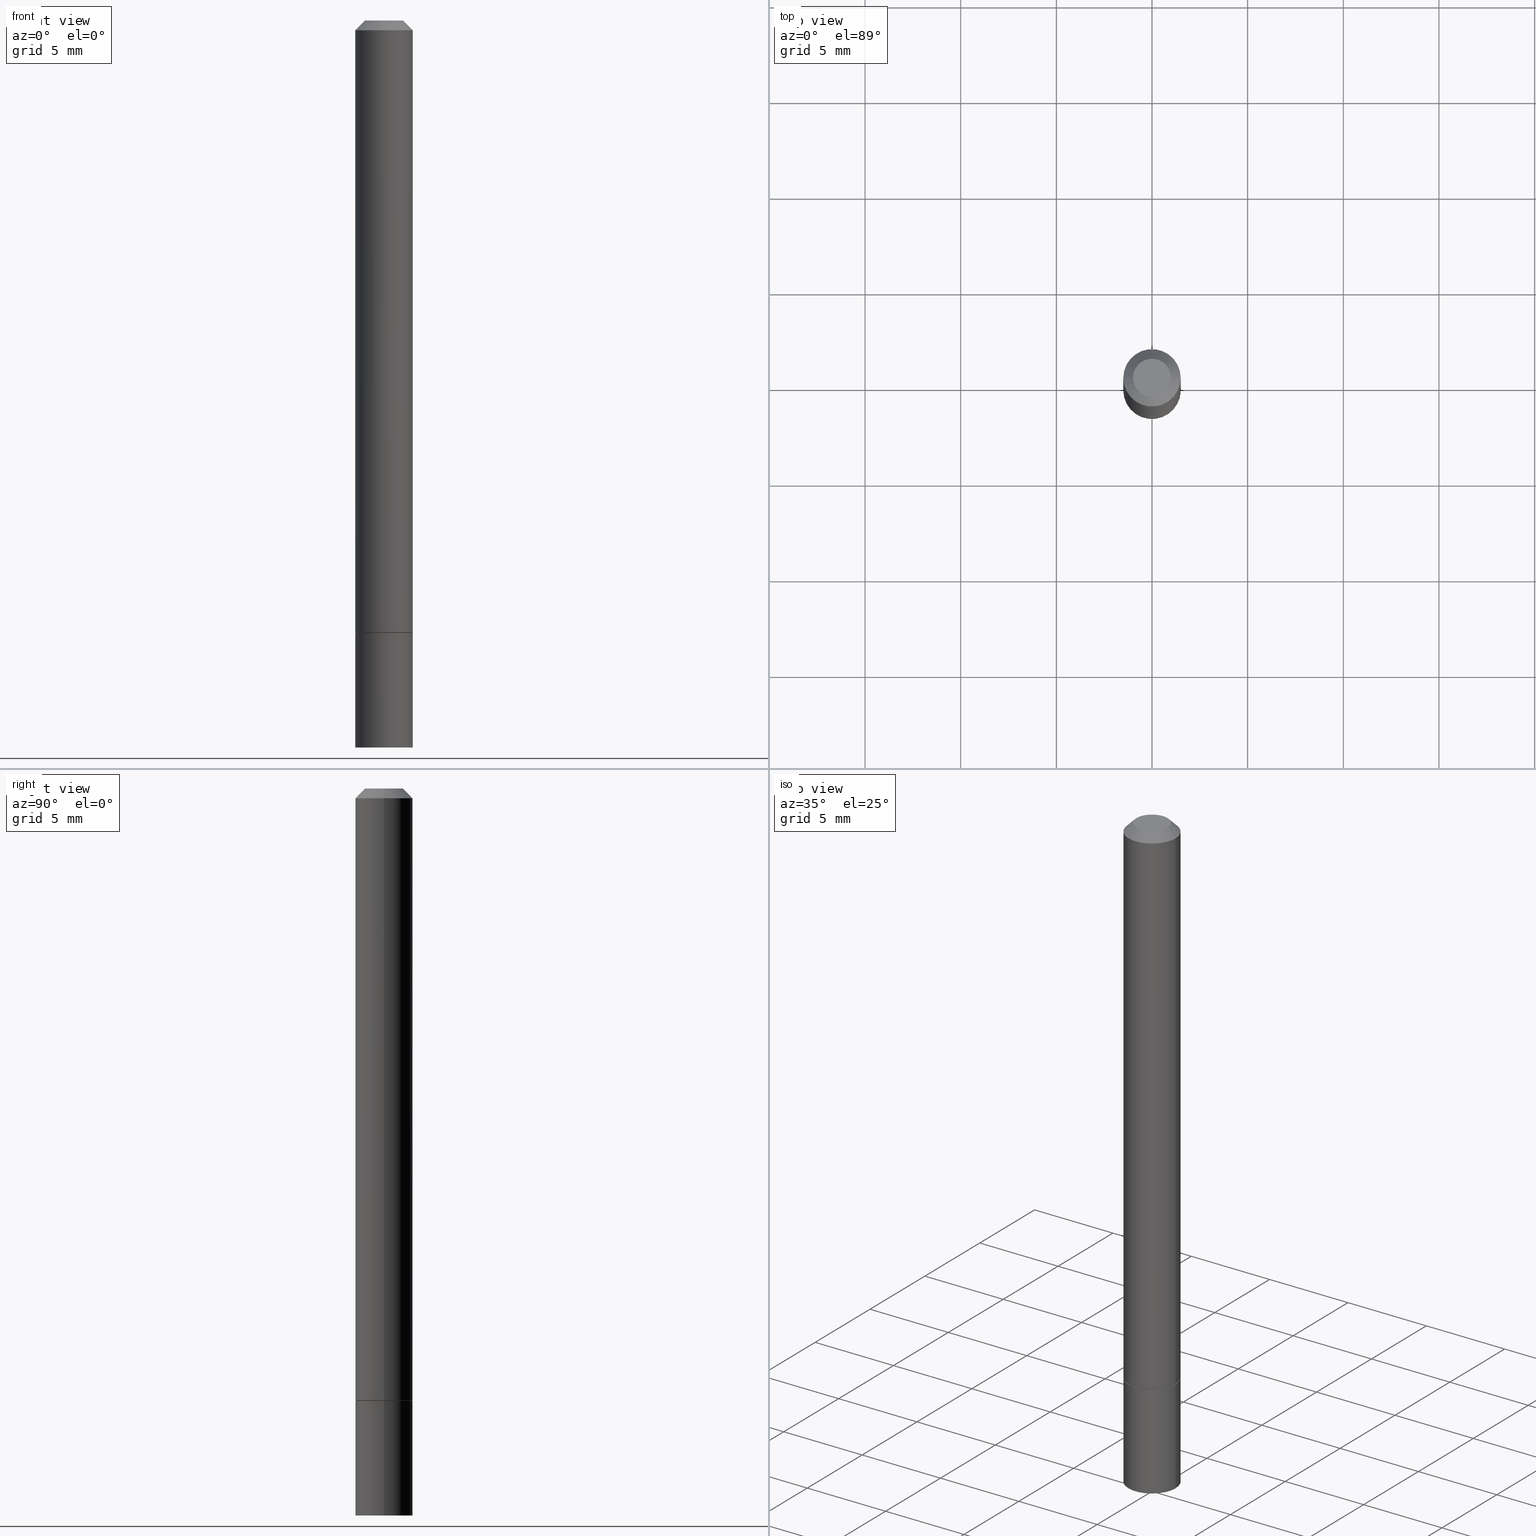
[diagram: canonical four-view strip — front | top / right | iso, engineering-drawing reading convention]
A machine part, canonical four-view strip (front | top / right | iso — engineering-drawing reading convention). The complete STEP part file that produces these views, byte-faithful:
ISO-10303-21;
HEADER;
FILE_DESCRIPTION (( 'STEP AP203' ),
    '1' );
FILE_NAME ('41621.STEP',
    '2024-02-28T02:31:24',
    ( '' ),
    ( '' ),
    'SwSTEP 2.0',
    'SolidWorks 2023',
    '' );
FILE_SCHEMA (( 'CONFIG_CONTROL_DESIGN' ));
ENDSEC;

DATA;
#1 = DIRECTION ( 'NONE',  ( -1.000000000000000000, 6.982962677686265922E-15, -4.876176775795935793E-29 ) ) ;
#2 = LINE ( 'NONE', #210, #67 ) ;
#3 = DIRECTION ( 'NONE',  ( -2.445468806185136597E-29, 3.491481338843145583E-15, 1.000000000000000000 ) ) ;
#4 = PRODUCT_DEFINITION ( 'UNKNOWN', '', #163, #264 ) ;
#5 = CYLINDRICAL_SURFACE ( 'NONE', #20, 0.05904999999999994975 ) ;
#6 = FACE_OUTER_BOUND ( 'NONE', #213, .T. ) ;
#7 = DIRECTION ( 'NONE',  ( -2.445468806185136597E-29, 3.491481338843145583E-15, 1.000000000000000000 ) ) ;
#8 = EDGE_CURVE ( 'NONE', #132, #136, #366, .T. ) ;
#9 = DIRECTION ( 'NONE',  ( 1.000000000000000000, -6.982962677686270655E-15, 0.000000000000000000 ) ) ;
#10 = PRODUCT ( '41621', '41621', '', ( #149 ) ) ;
#11 = CIRCLE ( 'NONE', #121, 0.05904999999999988036 ) ;
#12 = PERSON_AND_ORGANIZATION_ROLE ( 'creator' ) ;
#13 = CARTESIAN_POINT ( 'NONE',  ( 0.000000000000000000, 0.000000000000000000, 0.000000000000000000 ) ) ;
#14 = CC_DESIGN_DATE_AND_TIME_ASSIGNMENT ( #232, #323, ( #209 ) ) ;
#15 = PERSON_AND_ORGANIZATION_ROLE ( 'design_owner' ) ;
#16 = APPROVAL_DATE_TIME ( #356, #222 ) ;
#17 = APPROVAL_STATUS ( 'not_yet_approved' ) ;
#18 = EDGE_CURVE ( 'NONE', #307, #326, #309, .T. ) ;
#19 = ORIENTED_EDGE ( 'NONE', *, *, #64, .F. ) ;
#20 = AXIS2_PLACEMENT_3D ( 'NONE', #164, #113, #62 ) ;
#21 = CC_DESIGN_PERSON_AND_ORGANIZATION_ASSIGNMENT ( #230, #207, ( #163 ) ) ;
#22 = LINE ( 'NONE', #337, #38 ) ;
#23 = CARTESIAN_POINT ( 'NONE',  ( -0.05905000000000001914, -1.813052256656907407E-15, -1.258899999999999686 ) ) ;
#24 = ORIENTED_EDGE ( 'NONE', *, *, #35, .F. ) ;
#25 = DIRECTION ( 'NONE',  ( 2.438088387897960049E-29, -3.491481338843145188E-15, -1.000000000000000000 ) ) ;
#26 = AXIS2_PLACEMENT_3D ( 'NONE', #172, #223, #90 ) ;
#27 = DIRECTION ( 'NONE',  ( 2.438088387897960049E-29, -3.491481338843145188E-15, -1.000000000000000000 ) ) ;
#28 = VERTEX_POINT ( 'NONE', #200 ) ;
#29 = CARTESIAN_POINT ( 'NONE',  ( 3.078600680106467904E-29, -4.395425857469635235E-15, -1.258899999999999686 ) ) ;
#30 = LINE ( 'NONE', #55, #238 ) ;
#31 = DIRECTION ( 'NONE',  ( -2.445468806185136597E-29, 3.491481338843145583E-15, 1.000000000000000000 ) ) ;
#32 = DIRECTION ( 'NONE',  ( -2.445468806185136597E-29, 3.491481338843145583E-15, 1.000000000000000000 ) ) ;
#33 = CONICAL_SURFACE ( 'NONE', #339, 0.05904999999999988036, 0.7853981633974476129 ) ;
#34 = CC_DESIGN_APPROVAL ( #222, ( #4 ) ) ;
#35 = EDGE_CURVE ( 'NONE', #152, #106, #146, .T. ) ;
#36 = DIRECTION ( 'NONE',  ( -2.445468806185136877E-29, 3.491481338843145188E-15, 1.000000000000000000 ) ) ;
#37 = CALENDAR_DATE ( 2024, 27, 2 ) ;
#38 = VECTOR ( 'NONE', #109, 39.37007874015748143 ) ;
#39 = ADVANCED_FACE ( 'NONE', ( #61 ), #354, .T. ) ;
#40 = DATE_AND_TIME ( #349, #226 ) ;
#41 =( NAMED_UNIT ( * ) SI_UNIT ( $, .STERADIAN. ) SOLID_ANGLE_UNIT ( ) );
#42 = AXIS2_PLACEMENT_3D ( 'NONE', #287, #341, #255 ) ;
#43 = APPROVAL ( #17, 'UNSPECIFIED' ) ;
#44 = AXIS2_PLACEMENT_3D ( 'NONE', #313, #56, #254 ) ;
#45 = ORIENTED_EDGE ( 'NONE', *, *, #120, .T. ) ;
#46 = CARTESIAN_POINT ( 'NONE',  ( 0.05905000000000001914, -4.811261284925853162E-15, -1.259899999999999798 ) ) ;
#47 = EDGE_CURVE ( 'NONE', #365, #326, #2, .T. ) ;
#48 = CARTESIAN_POINT ( 'NONE',  ( -0.05905000000000001914, -4.391685799459515247E-15, -1.259899999999999798 ) ) ;
#49 = AXIS2_PLACEMENT_3D ( 'NONE', #216, #127, #269 ) ;
#50 = ORIENTED_EDGE ( 'NONE', *, *, #35, .T. ) ;
#51 = ORIENTED_EDGE ( 'NONE', *, *, #306, .F. ) ;
#52 = DIRECTION ( 'NONE',  ( -2.445468806185136597E-29, 3.491481338843145583E-15, 1.000000000000000000 ) ) ;
#53 = ADVANCED_FACE ( 'NONE', ( #94 ), #347, .T. ) ;
#54 = AXIS2_PLACEMENT_3D ( 'NONE', #179, #25, #328 ) ;
#55 = CARTESIAN_POINT ( 'NONE',  ( 0.05904999999999988036, -4.749420335452712790E-16, -0.02000000000000007674 ) ) ;
#56 = DIRECTION ( 'NONE',  ( -2.445468806185136597E-29, 3.491481338843145583E-15, 1.000000000000000000 ) ) ;
#57 = LINE ( 'NONE', #168, #105 ) ;
#58 = APPLICATION_CONTEXT ( 'configuration controlled 3d designs of mechanical parts and assemblies' ) ;
#59 = DIRECTION ( 'NONE',  ( 1.000000000000000000, -6.982962677686266711E-15, 0.000000000000000000 ) ) ;
#60 = AXIS2_PLACEMENT_3D ( 'NONE', #336, #7, #59 ) ;
#61 = FACE_OUTER_BOUND ( 'NONE', #268, .T. ) ;
#62 = DIRECTION ( 'NONE',  ( 1.000000000000000000, -6.982962677686266711E-15, 4.876176775795935232E-29 ) ) ;
#63 = MANIFOLD_SOLID_BREP ( 'Body-Move/Copy2[1]', #190 ) ;
#64 = EDGE_CURVE ( 'NONE', #183, #365, #124, .T. ) ;
#65 = DIRECTION ( 'NONE',  ( -2.445468806185136597E-29, 3.491481338843145583E-15, 1.000000000000000000 ) ) ;
#66 = PERSON_AND_ORGANIZATION ( #247, #171 ) ;
#67 = VECTOR ( 'NONE', #262, 39.37007874015748143 ) ;
#68 = MANIFOLD_SOLID_BREP ( 'Body-Move/Copy2[2]', #353 ) ;
#69 = PLANE ( 'NONE',  #54 ) ;
#70 = APPROVAL_DATE_TIME ( #40, #229 ) ;
#71 = EDGE_CURVE ( 'NONE', #239, #28, #178, .T. ) ;
#72 = DATE_AND_TIME ( #275, #290 ) ;
#73 = ORIENTED_EDGE ( 'NONE', *, *, #332, .F. ) ;
#74 = AXIS2_PLACEMENT_3D ( 'NONE', #117, #87, #311 ) ;
#75 = LINE ( 'NONE', #161, #265 ) ;
#76 = DIRECTION ( 'NONE',  ( -2.445468806185136877E-29, 3.491481338843145188E-15, 1.000000000000000000 ) ) ;
#77 = ORIENTED_EDGE ( 'NONE', *, *, #158, .T. ) ;
#78 = CARTESIAN_POINT ( 'NONE',  ( 0.05905000000000001914, -5.635949177160603791E-15, -1.496099999999999985 ) ) ;
#79 = VECTOR ( 'NONE', #83, 39.37007874015748143 ) ;
#80 = CONICAL_SURFACE ( 'NONE', #74, 0.05805000000000001131, 0.7853981633972775267 ) ;
#81 = EDGE_LOOP ( 'NONE', ( #363, #289 ) ) ;
#82 = ORIENTED_EDGE ( 'NONE', *, *, #8, .T. ) ;
#83 = DIRECTION ( 'NONE',  ( -2.445468806185136877E-29, 3.491481338843145188E-15, 1.000000000000000000 ) ) ;
#84 = ORIENTED_EDGE ( 'NONE', *, *, #342, .T. ) ;
#85 = DIRECTION ( 'NONE',  ( -2.445468806185136597E-29, 3.491481338843145583E-15, 1.000000000000000000 ) ) ;
#86 = CC_DESIGN_PERSON_AND_ORGANIZATION_ASSIGNMENT ( #95, #12, ( #4 ) ) ;
#87 = DIRECTION ( 'NONE',  ( -2.445468806185136597E-29, 3.491481338843145583E-15, 1.000000000000000000 ) ) ;
#88 = EDGE_LOOP ( 'NONE', ( #169, #138, #133, #292 ) ) ;
#89 = CARTESIAN_POINT ( 'NONE',  ( 0.05905000000000001914, -4.807769803587009366E-15, -1.258899999999999686 ) ) ;
#90 = DIRECTION ( 'NONE',  ( 1.000000000000000000, -6.982962677686265922E-15, 4.876176775795935793E-29 ) ) ;
#91 = CIRCLE ( 'NONE', #181, 0.05805000000000001131 ) ;
#92 = CARTESIAN_POINT ( 'NONE',  ( 3.078600680106467904E-29, -4.395425857469635235E-15, -1.258899999999999686 ) ) ;
#93 = ADVANCED_FACE ( 'NONE', ( #319 ), #69, .F. ) ;
#94 = FACE_OUTER_BOUND ( 'NONE', #140, .T. ) ;
#95 = PERSON_AND_ORGANIZATION ( #247, #171 ) ;
#96 = DIRECTION ( 'NONE',  ( 1.000000000000000000, -6.982962677686270655E-15, 0.000000000000000000 ) ) ;
#97 = SECURITY_CLASSIFICATION_LEVEL ( 'unclassified' ) ;
#98 = CIRCLE ( 'NONE', #237, 0.05905000000000001914 ) ;
#99 = UNCERTAINTY_MEASURE_WITH_UNIT (LENGTH_MEASURE( 1.000000000000000082E-05 ), #295, 'distance_accuracy_value', 'NONE');
#100 = ADVANCED_FACE ( 'NONE', ( #193 ), #196, .T. ) ;
#101 = PERSON_AND_ORGANIZATION ( #247, #171 ) ;
#102 = APPROVAL_STATUS ( 'not_yet_approved' ) ;
#103 = VERTEX_POINT ( 'NONE', #301 ) ;
#104 = AXIS2_PLACEMENT_3D ( 'NONE', #92, #206, #96 ) ;
#105 = VECTOR ( 'NONE', #36, 39.37007874015748143 ) ;
#106 = VERTEX_POINT ( 'NONE', #46 ) ;
#107 = ORIENTED_EDGE ( 'NONE', *, *, #114, .T. ) ;
#108 = CC_DESIGN_PERSON_AND_ORGANIZATION_ASSIGNMENT ( #66, #177, ( #163 ) ) ;
#109 = DIRECTION ( 'NONE',  ( -0.7071067811864267805, 7.493145998869918709E-15, 0.7071067811866682540 ) ) ;
#110 = ORIENTED_EDGE ( 'NONE', *, *, #215, .T. ) ;
#111 = CARTESIAN_POINT ( 'NONE',  ( -0.05904999999999988036, 3.425143193405099949E-16, -0.02000000000000007674 ) ) ;
#112 = DIRECTION ( 'NONE',  ( 1.000000000000000000, -6.982962677686270655E-15, 0.000000000000000000 ) ) ;
#113 = DIRECTION ( 'NONE',  ( -2.445468806185136597E-29, 3.491481338843145583E-15, 1.000000000000000000 ) ) ;
#114 = EDGE_CURVE ( 'NONE', #106, #152, #98, .T. ) ;
#115 = DIRECTION ( 'NONE',  ( 0.7071067811865469066, -7.319954787623252890E-15, -0.7071067811865479058 ) ) ;
#116 = CARTESIAN_POINT ( 'NONE',  ( 4.890937612370292426E-31, -6.982962677686317493E-17, -0.02000000000000007674 ) ) ;
#117 = CARTESIAN_POINT ( 'NONE',  ( 3.081046148912654067E-29, -4.398917338808479820E-15, -1.259900000000000020 ) ) ;
#118 = DIRECTION ( 'NONE',  ( -2.445468806185136597E-29, 3.491481338843145583E-15, 1.000000000000000000 ) ) ;
#119 = PERSON_AND_ORGANIZATION ( #247, #171 ) ;
#120 = EDGE_CURVE ( 'NONE', #103, #183, #22, .T. ) ;
#121 = AXIS2_PLACEMENT_3D ( 'NONE', #344, #118, #335 ) ;
#122 =( NAMED_UNIT ( * ) PLANE_ANGLE_UNIT ( ) SI_UNIT ( $, .RADIAN. ) );
#123 = DATE_AND_TIME ( #37, #156 ) ;
#124 = CIRCLE ( 'NONE', #104, 0.05905000000000001914 ) ;
#125 = LOCAL_TIME ( 21, 31, 24.00000000000000000, #266 ) ;
#126 = COORDINATED_UNIVERSAL_TIME_OFFSET ( 5, 0, .BEHIND. ) ;
#127 = DIRECTION ( 'NONE',  ( -2.445468806185136597E-29, 3.491481338843145583E-15, 1.000000000000000000 ) ) ;
#128 = LINE ( 'NONE', #155, #150 ) ;
#129 = ADVANCED_FACE ( 'NONE', ( #325 ), #334, .T. ) ;
#130 = ORIENTED_EDGE ( 'NONE', *, *, #211, .F. ) ;
#131 = DIMENSIONAL_EXPONENTS ( 1.000000000000000000, 0.000000000000000000, 0.000000000000000000, 0.000000000000000000, 0.000000000000000000, 0.000000000000000000, 0.000000000000000000 ) ;
#132 = VERTEX_POINT ( 'NONE', #214 ) ;
#133 = ORIENTED_EDGE ( 'NONE', *, *, #114, .F. ) ;
#134 = EDGE_CURVE ( 'NONE', #132, #152, #75, .T. ) ;
#135 = ORIENTED_EDGE ( 'NONE', *, *, #120, .F. ) ;
#136 = VERTEX_POINT ( 'NONE', #78 ) ;
#137 = CARTESIAN_POINT ( 'NONE',  ( 0.05904999999999988036, -4.749420335452712790E-16, -0.02000000000000007674 ) ) ;
#138 = ORIENTED_EDGE ( 'NONE', *, *, #134, .T. ) ;
#139 = CARTESIAN_POINT ( 'NONE',  ( 0.05905000000000001914, -4.123439461173741806E-16, 2.879382386107500921E-30 ) ) ;
#140 = EDGE_LOOP ( 'NONE', ( #185, #82, #110, #24 ) ) ;
#141 = CARTESIAN_POINT ( 'NONE',  ( 4.123439461174106654E-16, 0.05904999999999479415, -1.496100000000000207 ) ) ;
#142 = CC_DESIGN_PERSON_AND_ORGANIZATION_ASSIGNMENT ( #148, #15, ( #10 ) ) ;
#143 = DIRECTION ( 'NONE',  ( 1.000000000000000000, -6.982962677686270655E-15, 0.000000000000000000 ) ) ;
#144 = CC_DESIGN_APPROVAL ( #229, ( #163 ) ) ;
#145 = PLANE ( 'NONE',  #225 ) ;
#146 = CIRCLE ( 'NONE', #253, 0.05905000000000001914 ) ;
#147 = EDGE_CURVE ( 'NONE', #282, #103, #346, .T. ) ;
#148 = PERSON_AND_ORGANIZATION ( #247, #171 ) ;
#149 = MECHANICAL_CONTEXT ( 'NONE', #58, 'mechanical' ) ;
#150 = VECTOR ( 'NONE', #272, 39.37007874015748854 ) ;
#151 = VECTOR ( 'NONE', #246, 39.37007874015748143 ) ;
#152 = VERTEX_POINT ( 'NONE', #48 ) ;
#153 = CARTESIAN_POINT ( 'NONE',  ( 3.081046148912652946E-29, -4.398917338808479031E-15, -1.259899999999999798 ) ) ;
#154 = ORIENTED_EDGE ( 'NONE', *, *, #18, .T. ) ;
#155 = CARTESIAN_POINT ( 'NONE',  ( -0.05904999999999988036, 3.425143193405099949E-16, -0.02000000000000007674 ) ) ;
#156 = LOCAL_TIME ( 21, 31, 24.00000000000000000, #126 ) ;
#157 = DIRECTION ( 'NONE',  ( -1.000000000000000000, 6.982962677686266711E-15, 0.000000000000000000 ) ) ;
#158 = EDGE_CURVE ( 'NONE', #28, #307, #128, .T. ) ;
#159 = EDGE_LOOP ( 'NONE', ( #250, #270 ) ) ;
#160 = ORIENTED_EDGE ( 'NONE', *, *, #327, .T. ) ;
#161 = CARTESIAN_POINT ( 'NONE',  ( -0.05905000000000001914, 4.195754854663392958E-16, -2.904631170795522943E-30 ) ) ;
#162 = AXIS2_PLACEMENT_3D ( 'NONE', #285, #85, #203 ) ;
#163 = PRODUCT_DEFINITION_FORMATION_WITH_SPECIFIED_SOURCE ( 'ANY', '', #10, .NOT_KNOWN. ) ;
#164 = CARTESIAN_POINT ( 'NONE',  ( 0.000000000000000000, 0.000000000000000000, 0.000000000000000000 ) ) ;
#165 = PRODUCT_RELATED_PRODUCT_CATEGORY ( 'detail', '', ( #10 ) ) ;
#166 = CARTESIAN_POINT ( 'NONE',  ( 0.000000000000000000, 0.000000000000000000, 0.000000000000000000 ) ) ;
#167 = ORIENTED_EDGE ( 'NONE', *, *, #327, .F. ) ;
#168 = CARTESIAN_POINT ( 'NONE',  ( -0.05904999999999994975, 4.195754854663388027E-16, -2.904631170795519440E-30 ) ) ;
#169 = ORIENTED_EDGE ( 'NONE', *, *, #278, .T. ) ;
#170 = AXIS2_PLACEMENT_3D ( 'NONE', #166, #32, #345 ) ;
#171 = ORGANIZATION ( 'UNSPECIFIED', 'UNSPECIFIED', '' ) ;
#172 = CARTESIAN_POINT ( 'NONE',  ( 3.081046148912652946E-29, -4.398917338808479031E-15, -1.259899999999999798 ) ) ;
#173 = DIRECTION ( 'NONE',  ( 2.445468806185136597E-29, -3.491481338843145583E-15, -1.000000000000000000 ) ) ;
#174 = ADVANCED_FACE ( 'NONE', ( #234 ), #33, .T. ) ;
#175 = CARTESIAN_POINT ( 'NONE',  ( 0.05805000000000001131, -4.804278322248167937E-15, -1.259900000000000020 ) ) ;
#176 = DIRECTION ( 'NONE',  ( 1.000000000000000000, -6.982962677686265922E-15, 4.873707401586876696E-29 ) ) ;
#177 = PERSON_AND_ORGANIZATION_ROLE ( 'design_supplier' ) ;
#178 = CIRCLE ( 'NONE', #277, 0.03904999999999989035 ) ;
#179 = CARTESIAN_POINT ( 'NONE',  ( 4.123439461174049462E-16, 0.05904999999999561988, -1.259900000000000020 ) ) ;
#180 = APPLICATION_PROTOCOL_DEFINITION ( 'international standard', 'config_control_design', 1994, #58 ) ;
#181 = AXIS2_PLACEMENT_3D ( 'NONE', #248, #3, #9 ) ;
#182 =( GEOMETRIC_REPRESENTATION_CONTEXT ( 3 ) GLOBAL_UNCERTAINTY_ASSIGNED_CONTEXT ( ( #99 ) ) GLOBAL_UNIT_ASSIGNED_CONTEXT ( ( #295, #122, #41 ) ) REPRESENTATION_CONTEXT ( 'NONE', 'WORKASPACE' ) );
#183 = VERTEX_POINT ( 'NONE', #23 ) ;
#184 = CARTESIAN_POINT ( 'NONE',  ( 3.081046148912654067E-29, -4.398917338808479820E-15, -1.259900000000000020 ) ) ;
#185 = ORIENTED_EDGE ( 'NONE', *, *, #134, .F. ) ;
#186 = ORIENTED_EDGE ( 'NONE', *, *, #18, .F. ) ;
#187 = DIRECTION ( 'NONE',  ( -2.445468806185136597E-29, 3.491481338843145583E-15, 1.000000000000000000 ) ) ;
#188 = ADVANCED_FACE ( 'NONE', ( #241 ), #5, .T. ) ;
#189 = DIRECTION ( 'NONE',  ( 2.445468806185136597E-29, -3.491481338843145583E-15, -1.000000000000000000 ) ) ;
#190 = CLOSED_SHELL ( 'NONE', ( #129, #252, #93, #53 ) ) ;
#191 = ORIENTED_EDGE ( 'NONE', *, *, #47, .F. ) ;
#192 = EDGE_LOOP ( 'NONE', ( #73, #51, #77, #154 ) ) ;
#193 = FACE_OUTER_BOUND ( 'NONE', #330, .T. ) ;
#194 = CARTESIAN_POINT ( 'NONE',  ( 0.000000000000000000, 0.000000000000000000, 0.000000000000000000 ) ) ;
#195 = FACE_OUTER_BOUND ( 'NONE', #299, .T. ) ;
#196 = CONICAL_SURFACE ( 'NONE', #49, 0.05805000000000001131, 0.7853981633972775267 ) ;
#197 = CARTESIAN_POINT ( 'NONE',  ( 2.726846925636479293E-16, 0.03904999999999989035, -1.640876774674771079E-16 ) ) ;
#198 = DIRECTION ( 'NONE',  ( -1.000000000000000000, 6.982962677686265922E-15, -4.876176775795935793E-29 ) ) ;
#199 = ADVANCED_FACE ( 'NONE', ( #6 ), #219, .T. ) ;
#200 = CARTESIAN_POINT ( 'NONE',  ( -0.03904999999999989035, 3.075995059520788882E-16, -5.549066237130737733E-17 ) ) ;
#201 = CIRCLE ( 'NONE', #243, 0.05905000000000001914 ) ;
#202 = CC_DESIGN_SECURITY_CLASSIFICATION ( #209, ( #163 ) ) ;
#203 = DIRECTION ( 'NONE',  ( 1.000000000000000000, -6.982962677686270655E-15, 0.000000000000000000 ) ) ;
#204 = CARTESIAN_POINT ( 'NONE',  ( 1.357006838635785746E-45, -1.937446121494581442E-31, -5.549066237130534971E-17 ) ) ;
#205 = APPROVAL_STATUS ( 'not_yet_approved' ) ;
#206 = DIRECTION ( 'NONE',  ( -2.445468806185136597E-29, 3.491481338843145583E-15, 1.000000000000000000 ) ) ;
#207 = PERSON_AND_ORGANIZATION_ROLE ( 'creator' ) ;
#208 = PERSON_AND_ORGANIZATION ( #247, #171 ) ;
#209 = SECURITY_CLASSIFICATION ( '', '', #97 ) ;
#210 = CARTESIAN_POINT ( 'NONE',  ( 0.05904999999999994975, -4.123439461173736876E-16, 2.879382386107497418E-30 ) ) ;
#211 = EDGE_CURVE ( 'NONE', #365, #183, #201, .T. ) ;
#212 = EDGE_LOOP ( 'NONE', ( #107, #50 ) ) ;
#213 = EDGE_LOOP ( 'NONE', ( #304, #242, #167, #191 ) ) ;
#214 = CARTESIAN_POINT ( 'NONE',  ( -0.05905000000000001914, -4.391685799459515247E-15, -1.496099999999999985 ) ) ;
#215 = EDGE_CURVE ( 'NONE', #136, #106, #316, .T. ) ;
#216 = CARTESIAN_POINT ( 'NONE',  ( 3.081046148912654067E-29, -4.398917338808479820E-15, -1.259900000000000020 ) ) ;
#217 = ORIENTED_EDGE ( 'NONE', *, *, #64, .T. ) ;
#218 = ORIENTED_EDGE ( 'NONE', *, *, #8, .F. ) ;
#219 = CYLINDRICAL_SURFACE ( 'NONE', #170, 0.05904999999999994975 ) ;
#220 = FACE_OUTER_BOUND ( 'NONE', #81, .T. ) ;
#221 = LINE ( 'NONE', #175, #151 ) ;
#222 = APPROVAL ( #102, 'UNSPECIFIED' ) ;
#223 = DIRECTION ( 'NONE',  ( -2.438088387897960049E-29, 3.491481338843145188E-15, 1.000000000000000000 ) ) ;
#224 = CARTESIAN_POINT ( 'NONE',  ( 0.03904999999999989035, -3.714222401791245450E-16, -5.549066237130309406E-17 ) ) ;
#225 = AXIS2_PLACEMENT_3D ( 'NONE', #141, #286, #1 ) ;
#226 = LOCAL_TIME ( 21, 31, 24.00000000000000000, #228 ) ;
#227 = CARTESIAN_POINT ( 'NONE',  ( 0.000000000000000000, 0.000000000000000000, 0.000000000000000000 ) ) ;
#228 = COORDINATED_UNIVERSAL_TIME_OFFSET ( 5, 0, .BEHIND. ) ;
#229 = APPROVAL ( #205, 'UNSPECIFIED' ) ;
#230 = PERSON_AND_ORGANIZATION ( #247, #171 ) ;
#231 = APPROVAL_PERSON_ORGANIZATION ( #101, #43, #271 ) ;
#232 = DATE_AND_TIME ( #240, #259 ) ;
#233 = EDGE_CURVE ( 'NONE', #103, #282, #91, .T. ) ;
#234 = FACE_OUTER_BOUND ( 'NONE', #192, .T. ) ;
#235 = ORIENTED_EDGE ( 'NONE', *, *, #71, .F. ) ;
#236 = ORIENTED_EDGE ( 'NONE', *, *, #332, .T. ) ;
#237 = AXIS2_PLACEMENT_3D ( 'NONE', #153, #187, #274 ) ;
#238 = VECTOR ( 'NONE', #115, 39.37007874015748854 ) ;
#239 = VERTEX_POINT ( 'NONE', #224 ) ;
#240 = CALENDAR_DATE ( 2024, 27, 2 ) ;
#241 = FACE_OUTER_BOUND ( 'NONE', #312, .T. ) ;
#242 = ORIENTED_EDGE ( 'NONE', *, *, #364, .T. ) ;
#243 = AXIS2_PLACEMENT_3D ( 'NONE', #29, #256, #143 ) ;
#244 = DIRECTION ( 'NONE',  ( -1.000000000000000000, 6.982962677686266711E-15, 0.000000000000000000 ) ) ;
#245 = ADVANCED_FACE ( 'NONE', ( #220 ), #338, .F. ) ;
#246 = DIRECTION ( 'NONE',  ( 0.7071067811864267805, -2.468850131080992517E-15, 0.7071067811866682540 ) ) ;
#247 = PERSON ( 'UNSPECIFIED', 'UNSPECIFIED', 'UNSPECIFIED', ('UNSPECIFIED'), ('UNSPECIFIED'), ('UNSPECIFIED') ) ;
#248 = CARTESIAN_POINT ( 'NONE',  ( 3.081046148912654067E-29, -4.398917338808479820E-15, -1.259900000000000020 ) ) ;
#249 = PRODUCT_DEFINITION_SHAPE ( 'NONE', 'NONE',  #4 ) ;
#250 = ORIENTED_EDGE ( 'NONE', *, *, #306, .T. ) ;
#251 = FACE_OUTER_BOUND ( 'NONE', #159, .T. ) ;
#252 = ADVANCED_FACE ( 'NONE', ( #195 ), #145, .T. ) ;
#253 = AXIS2_PLACEMENT_3D ( 'NONE', #315, #31, #112 ) ;
#254 = DIRECTION ( 'NONE',  ( 1.000000000000000000, -6.982962677686265922E-15, 4.873707401586876696E-29 ) ) ;
#255 = DIRECTION ( 'NONE',  ( 1.000000000000000000, -6.982962677686270655E-15, 0.000000000000000000 ) ) ;
#256 = DIRECTION ( 'NONE',  ( -2.445468806185136597E-29, 3.491481338843145583E-15, 1.000000000000000000 ) ) ;
#257 = DATE_TIME_ROLE ( 'creation_date' ) ;
#258 = AXIS2_PLACEMENT_3D ( 'NONE', #227, #348, #351 ) ;
#259 = LOCAL_TIME ( 21, 31, 24.00000000000000000, #294 ) ;
#260 = APPROVAL_ROLE ( '' ) ;
#261 = APPLICATION_PROTOCOL_DEFINITION ( 'international standard', 'config_control_design', 1994, #279 ) ;
#262 = DIRECTION ( 'NONE',  ( -2.445468806185136877E-29, 3.491481338843145188E-15, 1.000000000000000000 ) ) ;
#263 = ADVANCED_FACE ( 'NONE', ( #251 ), #308, .F. ) ;
#264 = DESIGN_CONTEXT ( 'detailed design', #279, 'design' ) ;
#265 = VECTOR ( 'NONE', #76, 39.37007874015748143 ) ;
#266 = COORDINATED_UNIVERSAL_TIME_OFFSET ( 5, 0, .BEHIND. ) ;
#267 = SHAPE_DEFINITION_REPRESENTATION ( #249, #317 ) ;
#268 = EDGE_LOOP ( 'NONE', ( #235, #236, #160, #358 ) ) ;
#269 = DIRECTION ( 'NONE',  ( 1.000000000000000000, -6.982962677686270655E-15, 0.000000000000000000 ) ) ;
#270 = ORIENTED_EDGE ( 'NONE', *, *, #71, .T. ) ;
#271 = APPROVAL_ROLE ( '' ) ;
#272 = DIRECTION ( 'NONE',  ( -0.7071067811865469066, 2.468850131082251144E-15, -0.7071067811865479058 ) ) ;
#273 = ORIENTED_EDGE ( 'NONE', *, *, #147, .T. ) ;
#274 = DIRECTION ( 'NONE',  ( 1.000000000000000000, -6.982962677686270655E-15, 0.000000000000000000 ) ) ;
#275 = CALENDAR_DATE ( 2024, 27, 2 ) ;
#276 = CARTESIAN_POINT ( 'NONE',  ( 4.890937612370292426E-31, -6.982962677686317493E-17, -0.02000000000000007674 ) ) ;
#277 = AXIS2_PLACEMENT_3D ( 'NONE', #204, #65, #176 ) ;
#278 = EDGE_CURVE ( 'NONE', #136, #132, #322, .T. ) ;
#279 = APPLICATION_CONTEXT ( 'configuration controlled 3d designs of mechanical parts and assemblies' ) ;
#280 = ORIENTED_EDGE ( 'NONE', *, *, #47, .T. ) ;
#281 = DIRECTION ( 'NONE',  ( 1.000000000000000000, -6.982962677686270655E-15, 0.000000000000000000 ) ) ;
#282 = VERTEX_POINT ( 'NONE', #310 ) ;
#283 = DIRECTION ( 'NONE',  ( -2.445468806185136597E-29, 3.491481338843145583E-15, 1.000000000000000000 ) ) ;
#284 = AXIS2_PLACEMENT_3D ( 'NONE', #197, #27, #198 ) ;
#285 = CARTESIAN_POINT ( 'NONE',  ( 3.658665880933582389E-29, -5.223605231043229660E-15, -1.496099999999999985 ) ) ;
#286 = DIRECTION ( 'NONE',  ( 2.438088387897960049E-29, -3.491481338843145188E-15, -1.000000000000000000 ) ) ;
#287 = CARTESIAN_POINT ( 'NONE',  ( 3.658665880933582389E-29, -5.223605231043229660E-15, -1.496099999999999985 ) ) ;
#288 =( LENGTH_UNIT ( ) NAMED_UNIT ( * ) SI_UNIT ( $, .METRE. ) );
#289 = ORIENTED_EDGE ( 'NONE', *, *, #233, .F. ) ;
#290 = LOCAL_TIME ( 21, 31, 24.00000000000000000, #302 ) ;
#291 = LENGTH_MEASURE_WITH_UNIT ( LENGTH_MEASURE( 0.02539999999999999897 ), #288 );
#292 = ORIENTED_EDGE ( 'NONE', *, *, #215, .F. ) ;
#293 = CALENDAR_DATE ( 2024, 27, 2 ) ;
#294 = COORDINATED_UNIVERSAL_TIME_OFFSET ( 5, 0, .BEHIND. ) ;
#295 =( CONVERSION_BASED_UNIT ( 'INCH', #291 ) LENGTH_UNIT ( ) NAMED_UNIT ( #131 ) );
#296 = AXIS2_PLACEMENT_3D ( 'NONE', #194, #52, #329 ) ;
#297 = CC_DESIGN_APPROVAL ( #43, ( #209 ) ) ;
#298 = ORIENTED_EDGE ( 'NONE', *, *, #342, .F. ) ;
#299 = EDGE_LOOP ( 'NONE', ( #300, #218 ) ) ;
#300 = ORIENTED_EDGE ( 'NONE', *, *, #278, .F. ) ;
#301 = CARTESIAN_POINT ( 'NONE',  ( -0.05805000000000001131, -3.981148826351518933E-15, -1.259900000000000020 ) ) ;
#302 = COORDINATED_UNIVERSAL_TIME_OFFSET ( 5, 0, .BEHIND. ) ;
#303 = CC_DESIGN_DATE_AND_TIME_ASSIGNMENT ( #123, #257, ( #4 ) ) ;
#304 = ORIENTED_EDGE ( 'NONE', *, *, #211, .T. ) ;
#305 = CIRCLE ( 'NONE', #44, 0.03904999999999989035 ) ;
#306 = EDGE_CURVE ( 'NONE', #28, #239, #305, .T. ) ;
#307 = VERTEX_POINT ( 'NONE', #111 ) ;
#308 = PLANE ( 'NONE',  #284 ) ;
#309 = CIRCLE ( 'NONE', #60, 0.05904999999999988036 ) ;
#310 = CARTESIAN_POINT ( 'NONE',  ( 0.05805000000000001131, -4.804278322248167937E-15, -1.259900000000000020 ) ) ;
#311 = DIRECTION ( 'NONE',  ( 1.000000000000000000, -6.982962677686270655E-15, 0.000000000000000000 ) ) ;
#312 = EDGE_LOOP ( 'NONE', ( #361, #217, #280, #186 ) ) ;
#313 = CARTESIAN_POINT ( 'NONE',  ( 1.357006838635785746E-45, -1.937446121494581442E-31, -5.549066237130534971E-17 ) ) ;
#314 = AXIS2_PLACEMENT_3D ( 'NONE', #116, #173, #244 ) ;
#315 = CARTESIAN_POINT ( 'NONE',  ( 3.081046148912652946E-29, -4.398917338808479031E-15, -1.259899999999999798 ) ) ;
#316 = LINE ( 'NONE', #139, #79 ) ;
#317 = ADVANCED_BREP_SHAPE_REPRESENTATION ( '41621', ( #63, #68, #324 ), #182 ) ;
#318 = APPROVAL_ROLE ( '' ) ;
#319 = FACE_OUTER_BOUND ( 'NONE', #212, .T. ) ;
#320 = DIRECTION ( 'NONE',  ( 0.000000000000000000, 0.000000000000000000, 1.000000000000000000 ) ) ;
#321 = ORIENTED_EDGE ( 'NONE', *, *, #233, .T. ) ;
#322 = CIRCLE ( 'NONE', #162, 0.05905000000000001914 ) ;
#323 = DATE_TIME_ROLE ( 'classification_date' ) ;
#324 = AXIS2_PLACEMENT_3D ( 'NONE', #13, #320, #352 ) ;
#325 = FACE_OUTER_BOUND ( 'NONE', #88, .T. ) ;
#326 = VERTEX_POINT ( 'NONE', #137 ) ;
#327 = EDGE_CURVE ( 'NONE', #326, #307, #11, .T. ) ;
#328 = DIRECTION ( 'NONE',  ( -1.000000000000000000, 6.982962677686265922E-15, -4.876176775795935793E-29 ) ) ;
#329 = DIRECTION ( 'NONE',  ( 1.000000000000000000, -6.982962677686266711E-15, 4.876176775795935793E-29 ) ) ;
#330 = EDGE_LOOP ( 'NONE', ( #135, #321, #84, #19 ) ) ;
#331 = AXIS2_PLACEMENT_3D ( 'NONE', #184, #283, #281 ) ;
#332 = EDGE_CURVE ( 'NONE', #239, #326, #30, .T. ) ;
#333 = APPROVAL_PERSON_ORGANIZATION ( #119, #229, #318 ) ;
#334 = CYLINDRICAL_SURFACE ( 'NONE', #296, 0.05905000000000001914 ) ;
#335 = DIRECTION ( 'NONE',  ( 1.000000000000000000, -6.982962677686266711E-15, 0.000000000000000000 ) ) ;
#336 = CARTESIAN_POINT ( 'NONE',  ( 4.890937612370292426E-31, -6.982962677686317493E-17, -0.02000000000000007674 ) ) ;
#337 = CARTESIAN_POINT ( 'NONE',  ( -0.05805000000000001131, -3.986447280699741335E-15, -1.259900000000000020 ) ) ;
#338 = PLANE ( 'NONE',  #26 ) ;
#339 = AXIS2_PLACEMENT_3D ( 'NONE', #276, #189, #157 ) ;
#340 = APPROVAL_PERSON_ORGANIZATION ( #355, #222, #260 ) ;
#341 = DIRECTION ( 'NONE',  ( -2.445468806185136597E-29, 3.491481338843145583E-15, 1.000000000000000000 ) ) ;
#342 = EDGE_CURVE ( 'NONE', #282, #365, #221, .T. ) ;
#343 = FACE_OUTER_BOUND ( 'NONE', #359, .T. ) ;
#344 = CARTESIAN_POINT ( 'NONE',  ( 4.890937612370292426E-31, -6.982962677686317493E-17, -0.02000000000000007674 ) ) ;
#345 = DIRECTION ( 'NONE',  ( 1.000000000000000000, -6.982962677686266711E-15, 4.876176775795935232E-29 ) ) ;
#346 = CIRCLE ( 'NONE', #331, 0.05805000000000001131 ) ;
#347 = CYLINDRICAL_SURFACE ( 'NONE', #258, 0.05905000000000001914 ) ;
#348 = DIRECTION ( 'NONE',  ( -2.445468806185136597E-29, 3.491481338843145583E-15, 1.000000000000000000 ) ) ;
#349 = CALENDAR_DATE ( 2024, 27, 2 ) ;
#350 = ADVANCED_FACE ( 'NONE', ( #343 ), #80, .T. ) ;
#351 = DIRECTION ( 'NONE',  ( 1.000000000000000000, -6.982962677686266711E-15, 4.876176775795935793E-29 ) ) ;
#352 = DIRECTION ( 'NONE',  ( 1.000000000000000000, 0.000000000000000000, 0.000000000000000000 ) ) ;
#353 = CLOSED_SHELL ( 'NONE', ( #350, #199, #39, #174, #188, #100, #245, #263 ) ) ;
#354 = CONICAL_SURFACE ( 'NONE', #314, 0.05904999999999988036, 0.7853981633974476129 ) ;
#355 = PERSON_AND_ORGANIZATION ( #247, #171 ) ;
#356 = DATE_AND_TIME ( #293, #125 ) ;
#357 = CC_DESIGN_PERSON_AND_ORGANIZATION_ASSIGNMENT ( #208, #362, ( #209 ) ) ;
#358 = ORIENTED_EDGE ( 'NONE', *, *, #158, .F. ) ;
#359 = EDGE_LOOP ( 'NONE', ( #273, #45, #130, #298 ) ) ;
#360 = APPROVAL_DATE_TIME ( #72, #43 ) ;
#361 = ORIENTED_EDGE ( 'NONE', *, *, #364, .F. ) ;
#362 = PERSON_AND_ORGANIZATION_ROLE ( 'classification_officer' ) ;
#363 = ORIENTED_EDGE ( 'NONE', *, *, #147, .F. ) ;
#364 = EDGE_CURVE ( 'NONE', #183, #307, #57, .T. ) ;
#365 = VERTEX_POINT ( 'NONE', #89 ) ;
#366 = CIRCLE ( 'NONE', #42, 0.05905000000000001914 ) ;
ENDSEC;
END-ISO-10303-21;
